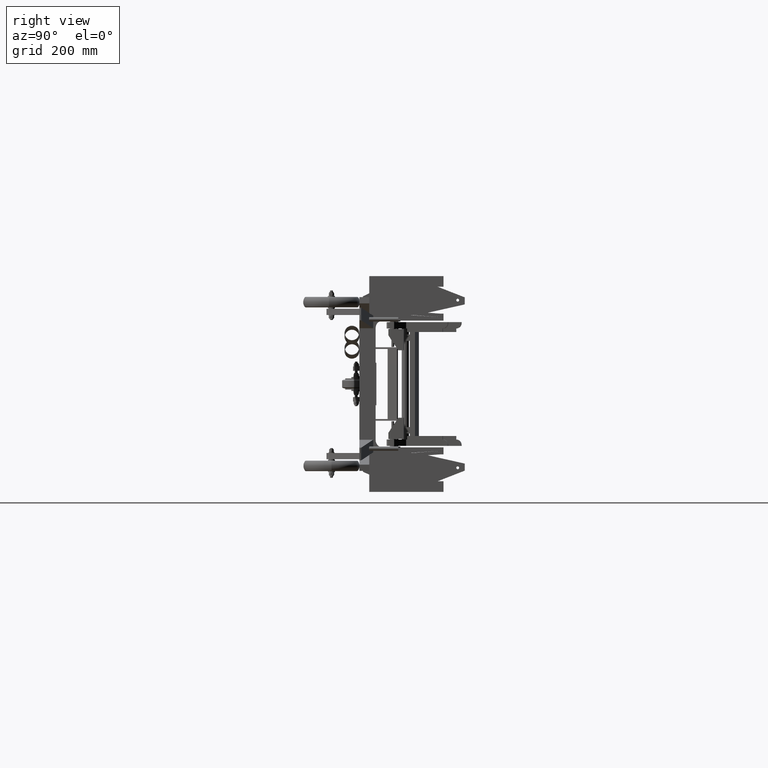
[diagram: clean part render]
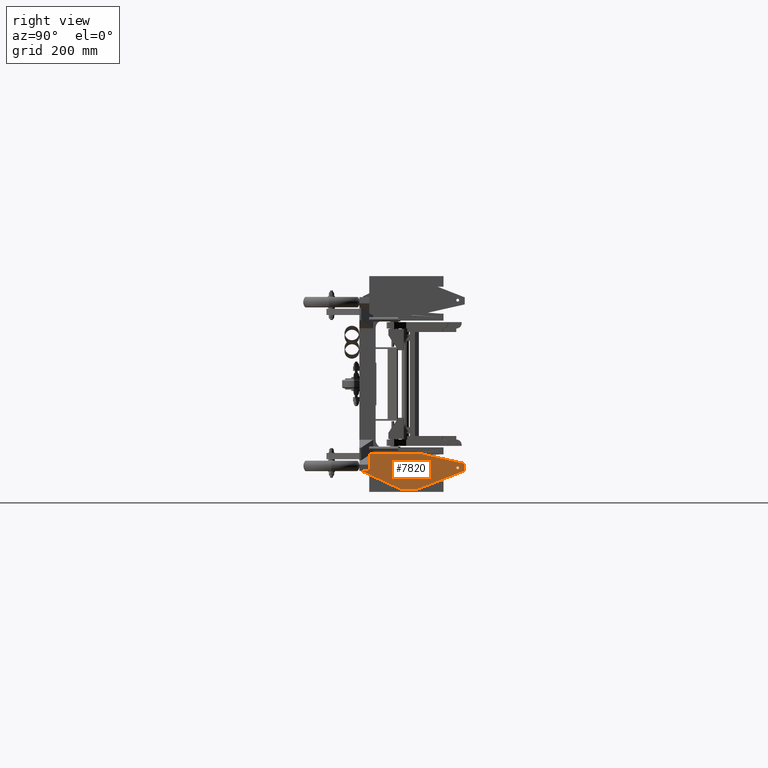
[diagram: same view with one face highlighted and labeled with its STEP entity id]
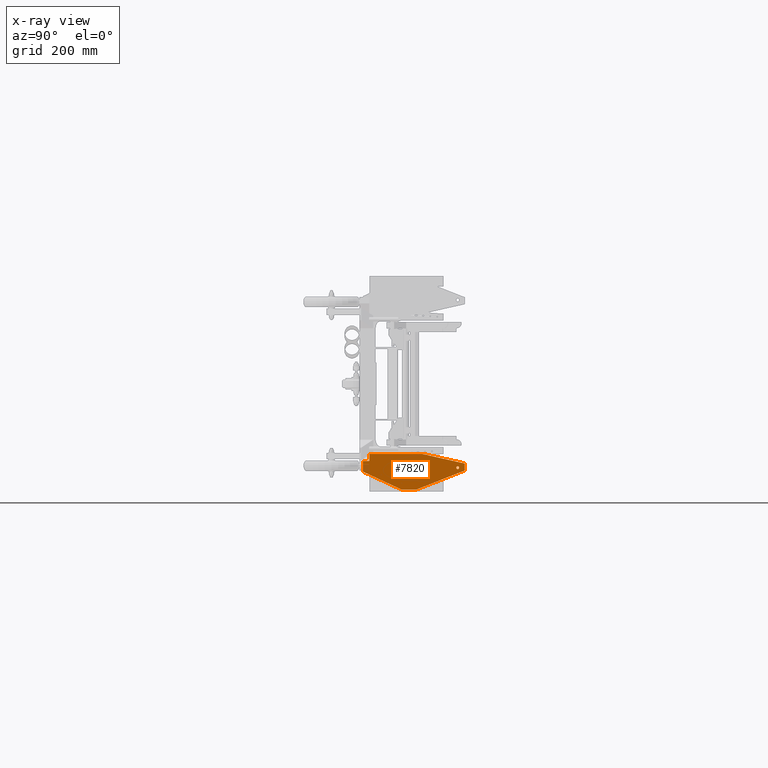
[diagram: x-ray of the same camera — body ghosted, the highlighted face saturated]
A machine part, right view. The second image highlights one B-rep face of the part: STEP entity #7820.
The next image is the same camera in x-ray: the body ghosted, the highlighted face saturated — about 2% of this face is hidden behind the body in this view.
In plain terms, the highlighted planar face has unit normal (-1, -0, 0).
Its self-contained STEP definition (entity closure, byte-faithful):
#514 = ORIENTED_EDGE ( 'NONE', *, *, #9501, .F. ) ;
#515 = ORIENTED_EDGE ( 'NONE', *, *, #1630, .F. ) ;
#516 = ORIENTED_EDGE ( 'NONE', *, *, #1638, .T. ) ;
#517 = ORIENTED_EDGE ( 'NONE', *, *, #1637, .T. ) ;
#518 = ORIENTED_EDGE ( 'NONE', *, *, #1643, .T. ) ;
#519 = ORIENTED_EDGE ( 'NONE', *, *, #1639, .T. ) ;
#520 = ORIENTED_EDGE ( 'NONE', *, *, #1646, .T. ) ;
#521 = ORIENTED_EDGE ( 'NONE', *, *, #1649, .T. ) ;
#522 = ORIENTED_EDGE ( 'NONE', *, *, #1652, .T. ) ;
#523 = ORIENTED_EDGE ( 'NONE', *, *, #9492, .T. ) ;
#524 = ORIENTED_EDGE ( 'NONE', *, *, #9493, .T. ) ;
#1630 = EDGE_CURVE ( 'NONE', #7528, #7529, #11041, .T. ) ;
#1637 = EDGE_CURVE ( 'NONE', #7532, #7535, #11051, .T. ) ;
#1638 = EDGE_CURVE ( 'NONE', #7533, #7532, #11044, .T. ) ;
#1639 = EDGE_CURVE ( 'NONE', #7537, #7539, #11055, .T. ) ;
#1643 = EDGE_CURVE ( 'NONE', #7535, #7537, #11063, .T. ) ;
#1646 = EDGE_CURVE ( 'NONE', #7539, #7541, #11069, .T. ) ;
#1649 = EDGE_CURVE ( 'NONE', #7541, #7543, #11075, .T. ) ;
#1652 = EDGE_CURVE ( 'NONE', #7543, #7545, #11081, .T. ) ;
#6312 = CARTESIAN_POINT ( 'NONE',  ( 38.97457779999996300, 268.0645981000000100, 10.00000000000000000 ) ) ;
#6314 = DIRECTION ( 'NONE',  ( 0.0000000000000000000, 0.0000000000000000000, 1.000000000000000000 ) ) ;
#6315 = DIRECTION ( 'NONE',  ( 1.000000000000000000, 0.0000000000000000000, 0.0000000000000000000 ) ) ;
#6325 = CARTESIAN_POINT ( 'NONE',  ( 50.00000000000000000, 2.449212707644751100E-016, 10.00000000000000000 ) ) ;
#6329 = CARTESIAN_POINT ( 'NONE',  ( 50.00000000000000000, 2.449212707644751100E-016, 10.00000000000000000 ) ) ;
#6330 = DIRECTION ( 'NONE',  ( 0.4206266036255585900, 0.9072338509570876400, 0.0000000000000000000 ) ) ;
#6332 = DIRECTION ( 'NONE',  ( 1.000000000000000000, 1.224606353822377300E-016, -0.0000000000000000000 ) ) ;
#6333 = CARTESIAN_POINT ( 'NONE',  ( 47.00000000000000000, 288.0000000000000600, 10.00000000000000000 ) ) ;
#6334 = DIRECTION ( 'NONE',  ( -0.3643993485805119800, 0.9312427797057534200, -0.0000000000000000000 ) ) ;
#6341 = CARTESIAN_POINT ( 'NONE',  ( 100.9999999999999700, 150.0000000000000000, 10.00000000000000000 ) ) ;
#6342 = DIRECTION ( 'NONE',  ( -0.0000000000000000000, 1.000000000000000000, -0.0000000000000000000 ) ) ;
#6347 = CARTESIAN_POINT ( 'NONE',  ( 27.00000000000000000, 288.0000000000000600, 10.00000000000000000 ) ) ;
#6348 = DIRECTION ( 'NONE',  ( -1.000000000000000000, -0.0000000000000000000, -0.0000000000000000000 ) ) ;
#6353 = CARTESIAN_POINT ( 'NONE',  ( 0.0000000000000000000, 167.9999999999999700, 10.00000000000000000 ) ) ;
#6354 = DIRECTION ( 'NONE',  ( -0.2195121951219511100, -0.9756097560975609500, -0.0000000000000000000 ) ) ;
#6359 = CARTESIAN_POINT ( 'NONE',  ( 0.0000000000000000000, 18.00000000000000000, 10.00000000000000000 ) ) ;
#6360 = DIRECTION ( 'NONE',  ( -0.0000000000000000000, -1.000000000000000000, -0.0000000000000000000 ) ) ;
#7087 = AXIS2_PLACEMENT_3D ( 'NONE', #6312, #6314, #6315 ) ;
#7528 = VERTEX_POINT ( 'NONE', #24587 ) ;
#7529 = VERTEX_POINT ( 'NONE', #24588 ) ;
#7532 = VERTEX_POINT ( 'NONE', #24591 ) ;
#7533 = VERTEX_POINT ( 'NONE', #24592 ) ;
#7535 = VERTEX_POINT ( 'NONE', #24594 ) ;
#7537 = VERTEX_POINT ( 'NONE', #24596 ) ;
#7539 = VERTEX_POINT ( 'NONE', #24598 ) ;
#7541 = VERTEX_POINT ( 'NONE', #24600 ) ;
#7543 = VERTEX_POINT ( 'NONE', #24602 ) ;
#7545 = VERTEX_POINT ( 'NONE', #24604 ) ;
#7547 = VERTEX_POINT ( 'NONE', #24606 ) ;
#7820 = ADVANCED_FACE ( 'NONE', ( #25494, #25498 ), #26595, .F. ) ;
#8862 = EDGE_LOOP ( 'NONE', ( #514, #515 ) ) ;
#8864 = EDGE_LOOP ( 'NONE', ( #516, #517, #518, #519, #520, #521, #522, #523, #524 ) ) ;
#9492 = EDGE_CURVE ( 'NONE', #7545, #7547, #15990, .T. ) ;
#9493 = EDGE_CURVE ( 'NONE', #7547, #7533, #15992, .T. ) ;
#9501 = EDGE_CURVE ( 'NONE', #7529, #7528, #16005, .T. ) ;
#11041 = CIRCLE ( 'NONE', #7087, 4.000000000000003600 ) ;
#11044 = LINE ( 'NONE', #6325, #11053 ) ;
#11051 = LINE ( 'NONE', #6329, #11052 ) ;
#11052 = VECTOR ( 'NONE', #6330, 1000.000000000000200 ) ;
#11053 = VECTOR ( 'NONE', #6332, 1000.000000000000000 ) ;
#11055 = LINE ( 'NONE', #6333, #11056 ) ;
#11056 = VECTOR ( 'NONE', #6334, 1000.000000000000100 ) ;
#11063 = LINE ( 'NONE', #6341, #11064 ) ;
#11064 = VECTOR ( 'NONE', #6342, 1000.000000000000000 ) ;
#11069 = LINE ( 'NONE', #6347, #11070 ) ;
#11070 = VECTOR ( 'NONE', #6348, 1000.000000000000000 ) ;
#11075 = LINE ( 'NONE', #6353, #11076 ) ;
#11076 = VECTOR ( 'NONE', #6354, 1000.000000000000100 ) ;
#11081 = LINE ( 'NONE', #6359, #11082 ) ;
#11082 = VECTOR ( 'NONE', #6360, 1000.000000000000000 ) ;
#14721 = CARTESIAN_POINT ( 'NONE',  ( 20.00000000000000000, 18.00000000000000400, 10.00000000000000000 ) ) ;
#14722 = DIRECTION ( 'NONE',  ( 1.000000000000000000, 1.734723475976807100E-016, -0.0000000000000000000 ) ) ;
#14725 = CARTESIAN_POINT ( 'NONE',  ( 20.00000000000000000, -3.428897790702656300E-015, 10.00000000000000000 ) ) ;
#14727 = DIRECTION ( 'NONE',  ( -0.0000000000000000000, -1.000000000000000000, -0.0000000000000000000 ) ) ;
#14827 = CARTESIAN_POINT ( 'NONE',  ( 38.97457779999996300, 268.0645981000000100, 10.00000000000000000 ) ) ;
#14830 = DIRECTION ( 'NONE',  ( 0.0000000000000000000, 0.0000000000000000000, 1.000000000000000000 ) ) ;
#14832 = DIRECTION ( 'NONE',  ( 1.000000000000000000, 0.0000000000000000000, 0.0000000000000000000 ) ) ;
#15990 = LINE ( 'NONE', #14721, #15991 ) ;
#15991 = VECTOR ( 'NONE', #14722, 1000.000000000000000 ) ;
#15992 = LINE ( 'NONE', #14725, #15993 ) ;
#15993 = VECTOR ( 'NONE', #14727, 1000.000000000000000 ) ;
#16005 = CIRCLE ( 'NONE', #26123, 4.000000000000003600 ) ;
#24587 = CARTESIAN_POINT ( 'NONE',  ( 34.97457779999996300, 268.0645981000000100, 10.00000000000000000 ) ) ;
#24588 = CARTESIAN_POINT ( 'NONE',  ( 42.97457779999997000, 268.0645981000000100, 10.00000000000000000 ) ) ;
#24591 = CARTESIAN_POINT ( 'NONE',  ( 50.00000000000000000, 2.449212707644751100E-016, 10.00000000000000000 ) ) ;
#24592 = CARTESIAN_POINT ( 'NONE',  ( 20.00000000000000000, -3.428897790702656300E-015, 10.00000000000000000 ) ) ;
#24594 = CARTESIAN_POINT ( 'NONE',  ( 100.9999999999999700, 110.0000000000000000, 10.00000000000000000 ) ) ;
#24596 = CARTESIAN_POINT ( 'NONE',  ( 100.9999999999999700, 150.0000000000000000, 10.00000000000000000 ) ) ;
#24598 = CARTESIAN_POINT ( 'NONE',  ( 47.00000000000000000, 288.0000000000000600, 10.00000000000000000 ) ) ;
#24600 = CARTESIAN_POINT ( 'NONE',  ( 27.00000000000000000, 288.0000000000000600, 10.00000000000000000 ) ) ;
#24602 = CARTESIAN_POINT ( 'NONE',  ( 0.0000000000000000000, 167.9999999999999700, 10.00000000000000000 ) ) ;
#24604 = CARTESIAN_POINT ( 'NONE',  ( 0.0000000000000000000, 18.00000000000000000, 10.00000000000000000 ) ) ;
#24606 = CARTESIAN_POINT ( 'NONE',  ( 20.00000000000000000, 18.00000000000000400, 10.00000000000000000 ) ) ;
#25494 = FACE_BOUND ( 'NONE', #8862, .T. ) ;
#25498 = FACE_OUTER_BOUND ( 'NONE', #8864, .T. ) ;
#26005 = AXIS2_PLACEMENT_3D ( 'NONE', #26596, #26601, #26602 ) ;
#26123 = AXIS2_PLACEMENT_3D ( 'NONE', #14827, #14830, #14832 ) ;
#26595 = PLANE ( 'NONE',  #26005 ) ;
#26596 = CARTESIAN_POINT ( 'NONE',  ( 20.00000000000000000, -3.428897790702656300E-015, 10.00000000000000000 ) ) ;
#26601 = DIRECTION ( 'NONE',  ( 0.0000000000000000000, 0.0000000000000000000, -1.000000000000000000 ) ) ;
#26602 = DIRECTION ( 'NONE',  ( -1.000000000000000000, 0.0000000000000000000, 0.0000000000000000000 ) ) ;